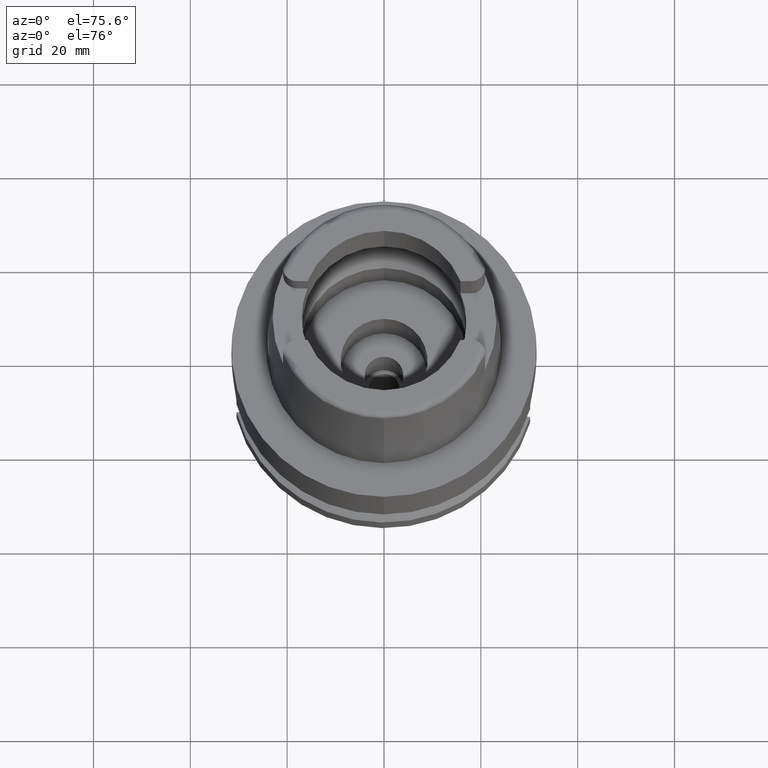
[diagram: clean part render]
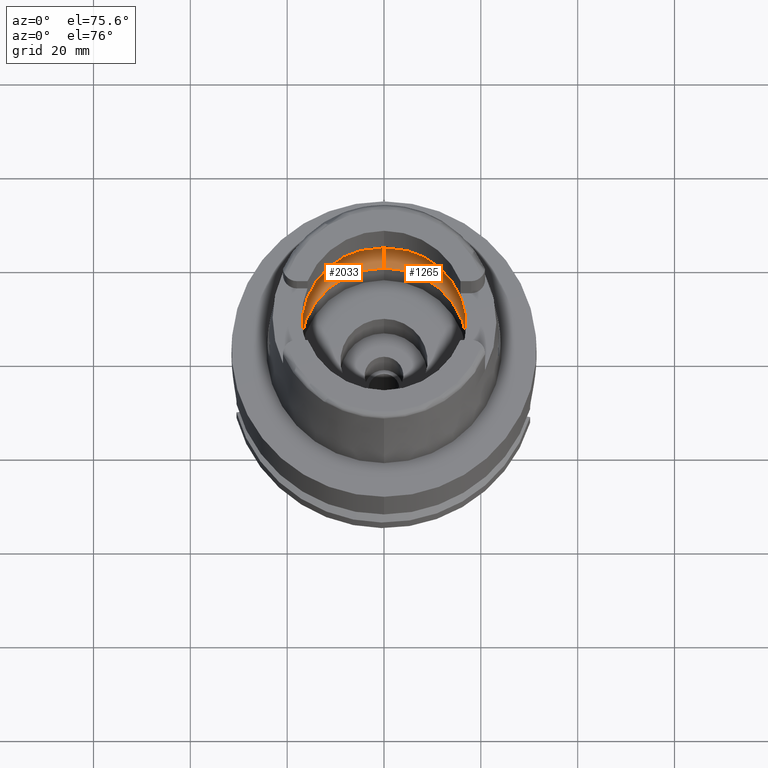
[diagram: same view with one multi-face feature highlighted, each face labeled with its STEP entity id]
A machine part, auxiliary view. The highlighted faces form ONE feature: a constant-radius fillet chain: 2 tangent blend faces with common blend radius 8 mm. The faces share edges in the B-rep.
Their STEP definitions:
[1] entity #2033 (Torus):
#199 = CARTESIAN_POINT ( 'NONE',  ( -19.92705990198736643, 1.286923474064824324, 5.477697007917331717 ) ) ;
#200 = VERTEX_POINT ( 'NONE', #5089 ) ;
#201 = CARTESIAN_POINT ( 'NONE',  ( -19.84575864665999845, -2.479085262491000030, 6.186348233825000875 ) ) ;
#229 = CARTESIAN_POINT ( 'NONE',  ( -19.92840419822511322, 1.244363506211097814, 5.462312164958983196 ) ) ;
#346 = CARTESIAN_POINT ( 'NONE',  ( -19.92517794959958266, -1.343610331871548880, 5.498961333861417167 ) ) ;
#400 = CARTESIAN_POINT ( 'NONE',  ( -19.92208503460743785, -1.430038535462604621, 5.533134759045768902 ) ) ;
#417 = CARTESIAN_POINT ( 'NONE',  ( 0.0000000000000000000, 17.25000000000000000, 0.1500000000000999700 ) ) ;
#453 = EDGE_CURVE ( 'NONE', #3973, #5299, #4888, .T. ) ;
#459 = EDGE_CURVE ( 'NONE', #2687, #4552, #4566, .T. ) ;
#463 = CARTESIAN_POINT ( 'NONE',  ( 0.0000000000000000000, -20.00000000000000000, 6.186348233825000875 ) ) ;
#520 = EDGE_CURVE ( 'NONE', #1574, #4245, #1455, .T. ) ;
#522 = ORIENTED_EDGE ( 'NONE', *, *, #1266, .F. ) ;
#644 = CARTESIAN_POINT ( 'NONE',  ( -19.84575864665999845, 2.479085262491000030, 6.186348233825000875 ) ) ;
#713 = CARTESIAN_POINT ( 'NONE',  ( 0.0000000000000000000, 0.0000000000000000000, 6.186348233825000875 ) ) ;
#752 = ORIENTED_EDGE ( 'NONE', *, *, #2212, .F. ) ;
#816 = CARTESIAN_POINT ( 'NONE',  ( -19.94501428475999916, 0.0000000000000000000, 5.250000000000000000 ) ) ;
#847 = CARTESIAN_POINT ( 'NONE',  ( -19.88058967141835609, -2.158413397973425241, 5.925203673423997230 ) ) ;
#1004 = DIRECTION ( 'NONE',  ( 0.0000000000000000000, 1.000000000000000000, 0.0000000000000000000 ) ) ;
#1022 = CARTESIAN_POINT ( 'NONE',  ( -19.94501428475999916, 0.0000000000000000000, 5.250000000000000000 ) ) ;
#1097 = DIRECTION ( 'NONE',  ( 0.0000000000000000000, 0.6562500000000006661, -0.7545435292281016393 ) ) ;
#1120 = CARTESIAN_POINT ( 'NONE',  ( 0.0000000000000000000, 0.0000000000000000000, 6.186348233825000875 ) ) ;
#1208 = CARTESIAN_POINT ( 'NONE',  ( -19.90056792326586077, -1.871072945705443136, 5.748194156554196077 ) ) ;
#1266 = EDGE_CURVE ( 'NONE', #4552, #200, #3275, .T. ) ;
#1315 = EDGE_CURVE ( 'NONE', #5299, #1574, #4622, .T. ) ;
#1455 = CIRCLE ( 'NONE', #4610, 20.00000000000000000 ) ;
#1540 = CARTESIAN_POINT ( 'NONE',  ( -19.92591701210031729, 1.321752758000885430, 5.490650989109542301 ) ) ;
#1552 = AXIS2_PLACEMENT_3D ( 'NONE', #4497, #2392, #1004 ) ;
#1574 = VERTEX_POINT ( 'NONE', #463 ) ;
#1692 = CARTESIAN_POINT ( 'NONE',  ( -19.91819969907426469, -1.528787881860568909, 5.574826406028700276 ) ) ;
#1704 = CARTESIAN_POINT ( 'NONE',  ( 0.0000000000000000000, -17.25000000000000000, 0.1500000000000999700 ) ) ;
#1963 = DIRECTION ( 'NONE',  ( 0.0000000000000000000, 0.0000000000000000000, -1.000000000000000000 ) ) ;
#1993 = CARTESIAN_POINT ( 'NONE',  ( -19.94501428476000271, 0.2480004543639204029, 5.249999999999999112 ) ) ;
#2007 = EDGE_LOOP ( 'NONE', ( #3355, #5496, #4011, #5121, #522, #4383, #752 ) ) ;
#2033 = ADVANCED_FACE ( 'NONE', ( #5386 ), #4628, .F. ) ;
#2212 = EDGE_CURVE ( 'NONE', #4245, #2687, #3867, .T. ) ;
#2305 = CARTESIAN_POINT ( 'NONE',  ( -19.84575864665999845, 2.479085262491000030, 6.186348233825000875 ) ) ;
#2392 = DIRECTION ( 'NONE',  ( 0.0000000000000000000, 0.0000000000000000000, 1.000000000000000000 ) ) ;
#2534 = CARTESIAN_POINT ( 'NONE',  ( -19.92467624382531000, -1.358118166560061901, 5.504563616460891318 ) ) ;
#2687 = VERTEX_POINT ( 'NONE', #1022 ) ;
#2737 = CARTESIAN_POINT ( 'NONE',  ( -19.92607293039359462, 1.317057967890473247, 5.488889127078770969 ) ) ;
#2767 = CARTESIAN_POINT ( 'NONE',  ( -19.93292506332445058, 1.081631408177287756, 5.408972312847152963 ) ) ;
#2849 = CARTESIAN_POINT ( 'NONE',  ( -19.93655182975511053, 0.9261173408848780708, 5.364558887407480547 ) ) ;
#2880 = CARTESIAN_POINT ( 'NONE',  ( -19.84575864665999845, -2.479085262491000030, 6.186348233825000875 ) ) ;
#2886 = DIRECTION ( 'NONE',  ( 0.0000000000000000000, -0.6562500000000006661, -0.7545435292281016393 ) ) ;
#2937 = CARTESIAN_POINT ( 'NONE',  ( -19.92547016831343853, -1.335028391745478604, 5.495682638901202566 ) ) ;
#2989 = CARTESIAN_POINT ( 'NONE',  ( -19.92391568384003975, -1.379820152731458194, 5.513021742193493502 ) ) ;
#3260 = CARTESIAN_POINT ( 'NONE',  ( -19.88332307774798835, 2.178371670853991304, 5.921391979387152560 ) ) ;
#3275 = CIRCLE ( 'NONE', #4170, 20.00000000000001421 ) ;
#3352 = CARTESIAN_POINT ( 'NONE',  ( -19.90654456091267122, -1.770007383642166365, 5.691881026689881828 ) ) ;
#3355 = ORIENTED_EDGE ( 'NONE', *, *, #520, .F. ) ;
#3655 = CARTESIAN_POINT ( 'NONE',  ( -19.93096056484117895, 1.157936378929085297, 5.432577832209988244 ) ) ;
#3658 = DIRECTION ( 'NONE',  ( 0.0000000000000000000, -1.000000000000000000, 0.0000000000000000000 ) ) ;
#3680 = DIRECTION ( 'NONE',  ( 0.0000000000000000000, -1.000000000000000000, 0.0000000000000000000 ) ) ;
#3725 = CARTESIAN_POINT ( 'NONE',  ( 0.0000000000000000000, -12.00000000000000000, 6.186348233825000875 ) ) ;
#3750 = CARTESIAN_POINT ( 'NONE',  ( 0.0000000000000000000, 12.00000000000000000, 6.186348233825000875 ) ) ;
#3867 = B_SPLINE_CURVE_WITH_KNOTS ( 'NONE', 3,
 ( #2880, #4591, #847, #1208, #3352, #4188, #1692, #400, #2989, #2534, #346, #2937, #4703, #4646, #816 ),
 .UNSPECIFIED., .F., .F.,
 ( 4, 2, 2, 1, 1, 1, 2, 2, 4 ),
 ( 0.0000000000000000000, 0.2500000000000088263, 0.3750000000000130451, 0.4375000000000151545, 0.4687500000000162093, 0.4843750000000166533, 0.4921875000000166533, 0.5000000000000166533, 1.000000000000000000 ),
 .UNSPECIFIED. ) ;
#3881 = CIRCLE ( 'NONE', #4417, 7.999999999999992895 ) ;
#3973 = VERTEX_POINT ( 'NONE', #417 ) ;
#4001 = AXIS2_PLACEMENT_3D ( 'NONE', #4029, #5361, #3658 ) ;
#4011 = ORIENTED_EDGE ( 'NONE', *, *, #453, .F. ) ;
#4029 = CARTESIAN_POINT ( 'NONE',  ( 0.0000000000000000000, 0.0000000000000000000, 6.186348233825000875 ) ) ;
#4047 = CARTESIAN_POINT ( 'NONE',  ( -19.90996070568236576, 1.795817770063438124, 5.670328448962781209 ) ) ;
#4076 = AXIS2_PLACEMENT_3D ( 'NONE', #3725, #5395, #2886 ) ;
#4170 = AXIS2_PLACEMENT_3D ( 'NONE', #713, #4173, #4199 ) ;
#4173 = DIRECTION ( 'NONE',  ( 0.0000000000000000000, 0.0000000000000000000, -1.000000000000000000 ) ) ;
#4188 = CARTESIAN_POINT ( 'NONE',  ( -19.91448534792932890, -1.610508948440541932, 5.612924528900559373 ) ) ;
#4192 = EDGE_CURVE ( 'NONE', #3973, #200, #3881, .T. ) ;
#4199 = DIRECTION ( 'NONE',  ( -0.9922879323327794543, 0.1239542631244973381, 0.0000000000000000000 ) ) ;
#4219 = DIRECTION ( 'NONE',  ( 1.000000000000000000, 0.0000000000000000000, 0.0000000000000000000 ) ) ;
#4245 = VERTEX_POINT ( 'NONE', #201 ) ;
#4383 = ORIENTED_EDGE ( 'NONE', *, *, #459, .F. ) ;
#4417 = AXIS2_PLACEMENT_3D ( 'NONE', #3750, #4219, #1097 ) ;
#4497 = CARTESIAN_POINT ( 'NONE',  ( 0.0000000000000000000, 0.0000000000000000000, 0.1500000000000999700 ) ) ;
#4528 = CARTESIAN_POINT ( 'NONE',  ( -19.92646960797195632, 1.305022935175742305, 5.484398146633392201 ) ) ;
#4552 = VERTEX_POINT ( 'NONE', #2305 ) ;
#4566 = B_SPLINE_CURVE_WITH_KNOTS ( 'NONE', 3,
 ( #4961, #1993, #4910, #4879, #2849, #2767, #3655, #229, #199, #4528, #2737, #1540, #4047, #3260, #644 ),
 .UNSPECIFIED., .F., .F.,
 ( 4, 2, 2, 1, 1, 1, 2, 2, 4 ),
 ( 0.0000000000000000000, 0.2499999999999958367, 0.3749999999999937272, 0.4374999999999923950, 0.4687499999999916178, 0.4843749999999915068, 0.4921874999999913958, 0.4999999999999913403, 1.000000000000000000 ),
 .UNSPECIFIED. ) ;
#4591 = CARTESIAN_POINT ( 'NONE',  ( -19.86453971831057075, -2.328737623859657990, 6.053878174927803002 ) ) ;
#4610 = AXIS2_PLACEMENT_3D ( 'NONE', #1120, #1963, #3680 ) ;
#4622 = CIRCLE ( 'NONE', #4076, 7.999999999999992895 ) ;
#4628 = TOROIDAL_SURFACE ( 'NONE', #4001, 12.00000000000000000, 8.000000000000000000 ) ;
#4646 = CARTESIAN_POINT ( 'NONE',  ( -19.94501428475999560, -0.4960410447439049797, 5.249999999999997335 ) ) ;
#4703 = CARTESIAN_POINT ( 'NONE',  ( -19.93856674119000516, -0.9459643382259051991, 5.348222180790206615 ) ) ;
#4879 = CARTESIAN_POINT ( 'NONE',  ( -19.93856669999437514, 0.8185612903796806172, 5.338678534769514705 ) ) ;
#4888 = CIRCLE ( 'NONE', #1552, 17.25000000000000000 ) ;
#4910 = CARTESIAN_POINT ( 'NONE',  ( -19.94340238856859315, 0.4850161375187141410, 5.274610197870742034 ) ) ;
#4961 = CARTESIAN_POINT ( 'NONE',  ( -19.94501428475999916, 0.0000000000000000000, 5.250000000000000000 ) ) ;
#5089 = CARTESIAN_POINT ( 'NONE',  ( 0.0000000000000000000, 20.00000000000000000, 6.186348233825000875 ) ) ;
#5121 = ORIENTED_EDGE ( 'NONE', *, *, #4192, .T. ) ;
#5299 = VERTEX_POINT ( 'NONE', #1704 ) ;
#5361 = DIRECTION ( 'NONE',  ( 0.0000000000000000000, 0.0000000000000000000, -1.000000000000000000 ) ) ;
#5386 = FACE_OUTER_BOUND ( 'NONE', #2007, .T. ) ;
#5395 = DIRECTION ( 'NONE',  ( -1.000000000000000000, 0.0000000000000000000, 0.0000000000000000000 ) ) ;
#5496 = ORIENTED_EDGE ( 'NONE', *, *, #1315, .F. ) ;
[2] entity #1265 (Torus):
#98 = AXIS2_PLACEMENT_3D ( 'NONE', #793, #371, #2081 ) ;
#200 = VERTEX_POINT ( 'NONE', #5089 ) ;
#371 = DIRECTION ( 'NONE',  ( 0.0000000000000000000, 0.0000000000000000000, -1.000000000000000000 ) ) ;
#417 = CARTESIAN_POINT ( 'NONE',  ( 0.0000000000000000000, 17.25000000000000000, 0.1500000000000999700 ) ) ;
#463 = CARTESIAN_POINT ( 'NONE',  ( 0.0000000000000000000, -20.00000000000000000, 6.186348233825000875 ) ) ;
#478 = EDGE_CURVE ( 'NONE', #1980, #4472, #4294, .T. ) ;
#700 = EDGE_CURVE ( 'NONE', #959, #1980, #2142, .T. ) ;
#722 = CARTESIAN_POINT ( 'NONE',  ( 19.91819982395854893, 1.528784657196633257, 5.574824959534048219 ) ) ;
#753 = CIRCLE ( 'NONE', #2825, 20.00000000000001421 ) ;
#793 = CARTESIAN_POINT ( 'NONE',  ( 0.0000000000000000000, 0.0000000000000000000, 6.186348233825000875 ) ) ;
#959 = VERTEX_POINT ( 'NONE', #3010 ) ;
#967 = ORIENTED_EDGE ( 'NONE', *, *, #478, .F. ) ;
#995 = EDGE_CURVE ( 'NONE', #4472, #1574, #753, .T. ) ;
#1032 = CARTESIAN_POINT ( 'NONE',  ( 19.93096047318056918, -1.157940144637055413, 5.432579051136762871 ) ) ;
#1084 = CARTESIAN_POINT ( 'NONE',  ( 19.92591688601885025, -1.321756895885540795, 5.490652547663943395 ) ) ;
#1097 = DIRECTION ( 'NONE',  ( 0.0000000000000000000, 0.6562500000000006661, -0.7545435292281016393 ) ) ;
#1152 = ORIENTED_EDGE ( 'NONE', *, *, #995, .F. ) ;
#1194 = CARTESIAN_POINT ( 'NONE',  ( 19.90654467646836778, 1.770005132905162482, 5.691879807082752762 ) ) ;
#1265 = ADVANCED_FACE ( 'NONE', ( #4569 ), #4906, .F. ) ;
#1292 = AXIS2_PLACEMENT_3D ( 'NONE', #1612, #1524, #4977 ) ;
#1302 = AXIS2_PLACEMENT_3D ( 'NONE', #2282, #1831, #3521 ) ;
#1315 = EDGE_CURVE ( 'NONE', #5299, #1574, #4622, .T. ) ;
#1389 = CIRCLE ( 'NONE', #1302, 17.25000000000000000 ) ;
#1427 = CARTESIAN_POINT ( 'NONE',  ( 19.92840408989147960, -1.244367451165427463, 5.462313551788925636 ) ) ;
#1428 = ORIENTED_EDGE ( 'NONE', *, *, #1315, .T. ) ;
#1485 = CARTESIAN_POINT ( 'NONE',  ( 19.92705978488601559, -1.286927501709047350, 5.477698479286130961 ) ) ;
#1513 = CARTESIAN_POINT ( 'NONE',  ( 19.92607280685506410, -1.317062051809039680, 5.488890658979321380 ) ) ;
#1524 = DIRECTION ( 'NONE',  ( 0.0000000000000000000, 0.0000000000000000000, -1.000000000000000000 ) ) ;
#1574 = VERTEX_POINT ( 'NONE', #463 ) ;
#1612 = CARTESIAN_POINT ( 'NONE',  ( 0.0000000000000000000, 0.0000000000000000000, 6.186348233825000875 ) ) ;
#1704 = CARTESIAN_POINT ( 'NONE',  ( 0.0000000000000000000, -17.25000000000000000, 0.1500000000000999700 ) ) ;
#1831 = DIRECTION ( 'NONE',  ( 0.0000000000000000000, 0.0000000000000000000, 1.000000000000000000 ) ) ;
#1877 = CARTESIAN_POINT ( 'NONE',  ( 19.88332298883960547, -2.178372382681698749, 5.921392606572648099 ) ) ;
#1962 = EDGE_CURVE ( 'NONE', #5299, #3973, #1389, .T. ) ;
#1980 = VERTEX_POINT ( 'NONE', #2223 ) ;
#2072 = CARTESIAN_POINT ( 'NONE',  ( 19.94501428475999916, 0.0000000000000000000, 5.250000000000000000 ) ) ;
#2081 = DIRECTION ( 'NONE',  ( 0.0000000000000000000, 1.000000000000000000, 0.0000000000000000000 ) ) ;
#2123 = ORIENTED_EDGE ( 'NONE', *, *, #4192, .F. ) ;
#2142 = B_SPLINE_CURVE_WITH_KNOTS ( 'NONE', 3,
 ( #4180, #4149, #2522, #5465, #1194, #2465, #722, #2871, #2925, #3736, #3369, #3339, #3289, #2494, #2072 ),
 .UNSPECIFIED., .F., .F.,
 ( 4, 2, 2, 1, 1, 1, 2, 2, 4 ),
 ( 0.0000000000000000000, 0.2500000000000015543, 0.3750000000000022204, 0.4375000000000023315, 0.4687500000000024425, 0.4843750000000026090, 0.4921875000000026090, 0.5000000000000025535, 1.000000000000000000 ),
 .UNSPECIFIED. ) ;
#2217 = EDGE_CURVE ( 'NONE', #200, #959, #4778, .T. ) ;
#2223 = CARTESIAN_POINT ( 'NONE',  ( 19.94501428475999916, 0.0000000000000000000, 5.250000000000000000 ) ) ;
#2282 = CARTESIAN_POINT ( 'NONE',  ( 0.0000000000000000000, 0.0000000000000000000, 0.1500000000000999700 ) ) ;
#2309 = CARTESIAN_POINT ( 'NONE',  ( 19.92646948702060428, -1.305026996780979109, 5.484399654313516059 ) ) ;
#2332 = CARTESIAN_POINT ( 'NONE',  ( 19.94501428475999916, 0.0000000000000000000, 5.250000000000000000 ) ) ;
#2359 = CARTESIAN_POINT ( 'NONE',  ( 19.94501428475999916, -0.2480014564252240872, 5.250000000000000000 ) ) ;
#2465 = CARTESIAN_POINT ( 'NONE',  ( 19.91448547043104256, 1.610506059394627654, 5.612923151450863735 ) ) ;
#2494 = CARTESIAN_POINT ( 'NONE',  ( 19.94501428475999560, 0.4960390492939688589, 5.249999999999998224 ) ) ;
#2522 = CARTESIAN_POINT ( 'NONE',  ( 19.88058974809684898, 2.158412543077528056, 5.925203020060026304 ) ) ;
#2825 = AXIS2_PLACEMENT_3D ( 'NONE', #3478, #4374, #5199 ) ;
#2871 = CARTESIAN_POINT ( 'NONE',  ( 19.92208516036315658, 1.430034890835472972, 5.533133253826981957 ) ) ;
#2886 = DIRECTION ( 'NONE',  ( 0.0000000000000000000, -0.6562500000000006661, -0.7545435292281016393 ) ) ;
#2925 = CARTESIAN_POINT ( 'NONE',  ( 19.92391580955442976, 1.379816291123153960, 5.513020213660540847 ) ) ;
#3010 = CARTESIAN_POINT ( 'NONE',  ( 19.84575864665999845, 2.479085262491000030, 6.186348233825000875 ) ) ;
#3025 = EDGE_LOOP ( 'NONE', ( #4830, #3337, #2123, #4724, #1428, #1152, #967 ) ) ;
#3289 = CARTESIAN_POINT ( 'NONE',  ( 19.93856678297499840, 0.9459609421639848525, 5.348221403789784389 ) ) ;
#3337 = ORIENTED_EDGE ( 'NONE', *, *, #2217, .F. ) ;
#3339 = CARTESIAN_POINT ( 'NONE',  ( 19.92547029497421818, 1.335024297797994697, 5.495681079272209502 ) ) ;
#3369 = CARTESIAN_POINT ( 'NONE',  ( 19.92517807509134187, 1.343606312468685893, 5.498959791250855211 ) ) ;
#3478 = CARTESIAN_POINT ( 'NONE',  ( 0.0000000000000000000, 0.0000000000000000000, 6.186348233825000875 ) ) ;
#3521 = DIRECTION ( 'NONE',  ( 0.0000000000000000000, -1.000000000000000000, 0.0000000000000000000 ) ) ;
#3628 = CARTESIAN_POINT ( 'NONE',  ( 19.93856665794220717, -0.8185641889834129881, 5.338679171497147991 ) ) ;
#3725 = CARTESIAN_POINT ( 'NONE',  ( 0.0000000000000000000, -12.00000000000000000, 6.186348233825000875 ) ) ;
#3736 = CARTESIAN_POINT ( 'NONE',  ( 19.92467636941975329, 1.358114210472420869, 5.504562079295808985 ) ) ;
#3750 = CARTESIAN_POINT ( 'NONE',  ( 0.0000000000000000000, 12.00000000000000000, 6.186348233825000875 ) ) ;
#3881 = CIRCLE ( 'NONE', #4417, 7.999999999999992895 ) ;
#3973 = VERTEX_POINT ( 'NONE', #417 ) ;
#4025 = CARTESIAN_POINT ( 'NONE',  ( 19.90996057472179359, -1.795819818635375986, 5.670329850438289299 ) ) ;
#4075 = CARTESIAN_POINT ( 'NONE',  ( 19.94340237805554494, -0.4850180025758214497, 5.274610396208616159 ) ) ;
#4076 = AXIS2_PLACEMENT_3D ( 'NONE', #3725, #5395, #2886 ) ;
#4149 = CARTESIAN_POINT ( 'NONE',  ( 19.86453976246540520, 2.328737270380783375, 6.053877863480496835 ) ) ;
#4180 = CARTESIAN_POINT ( 'NONE',  ( 19.84575864665999845, 2.479085262491000030, 6.186348233825000875 ) ) ;
#4192 = EDGE_CURVE ( 'NONE', #3973, #200, #3881, .T. ) ;
#4219 = DIRECTION ( 'NONE',  ( 1.000000000000000000, 0.0000000000000000000, 0.0000000000000000000 ) ) ;
#4294 = B_SPLINE_CURVE_WITH_KNOTS ( 'NONE', 3,
 ( #2332, #2359, #4075, #3628, #5382, #5295, #1032, #1427, #1485, #2309, #1513, #1084, #4025, #1877, #4473 ),
 .UNSPECIFIED., .F., .F.,
 ( 4, 2, 2, 1, 1, 1, 2, 2, 4 ),
 ( 0.0000000000000000000, 0.2499999999999987232, 0.3749999999999981126, 0.4374999999999980016, 0.4687499999999979461, 0.4843749999999978906, 0.4921874999999978906, 0.4999999999999978906, 1.000000000000000000 ),
 .UNSPECIFIED. ) ;
#4374 = DIRECTION ( 'NONE',  ( 0.0000000000000000000, 0.0000000000000000000, -1.000000000000000000 ) ) ;
#4417 = AXIS2_PLACEMENT_3D ( 'NONE', #3750, #4219, #1097 ) ;
#4472 = VERTEX_POINT ( 'NONE', #5473 ) ;
#4473 = CARTESIAN_POINT ( 'NONE',  ( 19.84575864665999845, -2.479085262491000030, 6.186348233825000875 ) ) ;
#4569 = FACE_OUTER_BOUND ( 'NONE', #3025, .T. ) ;
#4622 = CIRCLE ( 'NONE', #4076, 7.999999999999992895 ) ;
#4724 = ORIENTED_EDGE ( 'NONE', *, *, #1962, .F. ) ;
#4778 = CIRCLE ( 'NONE', #98, 20.00000000000000000 ) ;
#4830 = ORIENTED_EDGE ( 'NONE', *, *, #700, .F. ) ;
#4906 = TOROIDAL_SURFACE ( 'NONE', #1292, 12.00000000000000000, 8.000000000000000000 ) ;
#4977 = DIRECTION ( 'NONE',  ( 0.0000000000000000000, -1.000000000000000000, 0.0000000000000000000 ) ) ;
#5089 = CARTESIAN_POINT ( 'NONE',  ( 0.0000000000000000000, 20.00000000000000000, 6.186348233825000875 ) ) ;
#5199 = DIRECTION ( 'NONE',  ( 0.9922879323327794543, -0.1239542631244973381, 0.0000000000000000000 ) ) ;
#5295 = CARTESIAN_POINT ( 'NONE',  ( 19.93292498447662808, -1.081634996230508072, 5.408973391345252679 ) ) ;
#5299 = VERTEX_POINT ( 'NONE', #1704 ) ;
#5382 = CARTESIAN_POINT ( 'NONE',  ( 19.93655177456163941, -0.9261205412522953706, 5.364559693844707766 ) ) ;
#5395 = DIRECTION ( 'NONE',  ( -1.000000000000000000, 0.0000000000000000000, 0.0000000000000000000 ) ) ;
#5465 = CARTESIAN_POINT ( 'NONE',  ( 19.90056803128309326, 1.871071076466524818, 5.748193068415501372 ) ) ;
#5473 = CARTESIAN_POINT ( 'NONE',  ( 19.84575864665999845, -2.479085262491000030, 6.186348233825000875 ) ) ;